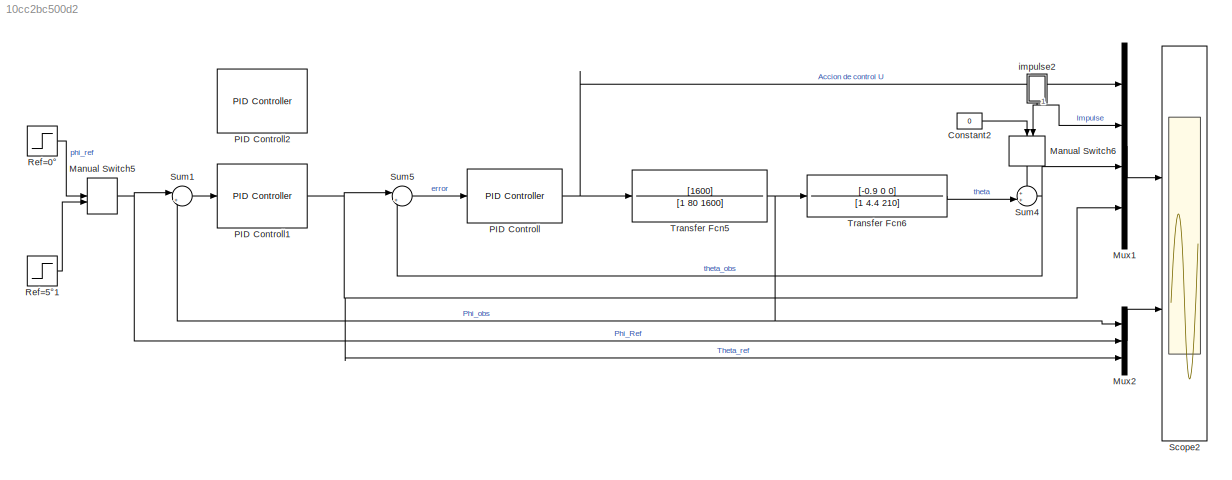
MODEL slx_10cc2bc500d2
KIND model
CONFIG AbsTol = auto
CONFIG EnableMultiTasking = off
CONFIG FixedStep = 0.01
CONFIG MaxStep = auto
CONFIG MinStep = auto
CONFIG RelTol = 1e-3
CONFIG SampleTimeConstraint = Unconstrained
CONFIG Solver = FixedStepAuto
CONFIG SolverName = FixedStepAuto
CONFIG StartTime = 0.0
CONFIG StopTime = 10
BLOCK [Constant] Constant2
  Value = 0
BLOCK [ManualSwitch] Manual Switch5
  CurrentSetting = 0
BLOCK [ManualSwitch] Manual Switch6
BLOCK [Mux] Mux1
  DisplayOption = bar
  Ports = [4, 1]
BLOCK [Mux] Mux2
  DisplayOption = bar
  Inputs = 3
  Ports = [3, 1]
BLOCK [Reference] PID Controll  REF=simulink/Continuous/PID Controller
  Ports = [1, 1]
  SourceBlock = simulink/Continuous/PID Controller
  SourceProductBaseCode = SL
  SourceProductName = Simulink
  SourceType = PID 1dof
BLOCK [Reference] PID Controll1  REF=simulink/Continuous/PID Controller
  Ports = [1, 1]
  SourceBlock = simulink/Continuous/PID Controller
  SourceProductBaseCode = SL
  SourceProductName = Simulink
  SourceType = PID 1dof
BLOCK [Reference] PID Controll2  REF=simulink/Continuous/PID Controller
  Ports = [1, 1]
  SourceBlock = simulink/Continuous/PID Controller
  SourceProductBaseCode = SL
  SourceProductName = Simulink
  SourceType = PID 1dof
BLOCK [Step] Ref=0°
  After = 0
  SampleTime = 0
BLOCK [Step] Ref=5°1
  After = 5
  SampleTime = 0
BLOCK [Scope] Scope2
  NumInputPorts = 2
  Ports = [2]
  ScopeSpecificationString = Simulink.scopes.TimeScopeBlockCfg('CurrentConfiguration', extmgr.ConfigurationSet(extmgr.Configuration('Core','General UI',true),extmgr.Configuration('Core','Source UI',true),extmgr.Configuration('Sources','WiredSimulink',true,'DataLoggingVariableName','ScopeData2'),extmgr.Configuration('Visuals','Time Domain',true,'SerializedDisplays',{struct('MinYLimReal','-6.58818','MaxYLimReal','34.07397','YLa...<+1918ch>
BLOCK [Sum] Sum1
  IconShape = round
  InputSameDT = off
  Inputs = |+-
  OutDataTypeStr = Inherit: Inherit via internal rule
  Ports = [2, 1]
  SaturateOnIntegerOverflow = off
BLOCK [Sum] Sum4
  IconShape = round
  InputSameDT = off
  Inputs = ++|
  OutDataTypeStr = Inherit: Inherit via internal rule
  Ports = [2, 1]
  SaturateOnIntegerOverflow = off
BLOCK [Sum] Sum5
  IconShape = round
  InputSameDT = off
  Inputs = |+-
  OutDataTypeStr = Inherit: Inherit via internal rule
  Ports = [2, 1]
  SaturateOnIntegerOverflow = off
BLOCK [TransferFcn] Transfer Fcn5
  Denominator = [1 80 1600]
  Numerator = [1600]
BLOCK [TransferFcn] Transfer Fcn6
  Denominator = [1 4.4 210]
  Numerator = [-0.9 0 0]
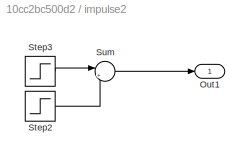
BLOCK [SubSystem] impulse2
  Ports = [0, 1]
  RequestExecContextInheritance = off
  Variant = off
BLOCK [Outport] impulse2/Out1
  IconDisplay = Port number
BLOCK [Step] impulse2/Step2
  After = 30
  SampleTime = 0
  Time = 2.01
BLOCK [Step] impulse2/Step3
  After = 30
  SampleTime = 0
  Time = 2
BLOCK [Sum] impulse2/Sum
  IconShape = round
  InputSameDT = off
  Inputs = |+-
  OutDataTypeStr = Inherit: Inherit via internal rule
  Ports = [2, 1]
  SaturateOnIntegerOverflow = off
LINE Constant2:1 -> Manual Switch6:1
NET Manual Switch5:1 -> Mux2:2, Sum1:1
LINE Manual Switch6:1 -> Sum4:1
LINE Mux1:1 -> Scope2:1
LINE Mux2:1 -> Scope2:2
NET PID Controll1:1 -> Mux1:4, Mux2:3, Sum5:1
NET PID Controll:1 -> Mux1:1, Transfer Fcn5:1
LINE Ref=0°:1 -> Manual Switch5:1
LINE Ref=5°1:1 -> Manual Switch5:2
LINE Sum1:1 -> PID Controll1:1
NET Sum4:1 -> Mux1:3, Sum5:2
LINE Sum5:1 -> PID Controll:1
NET Transfer Fcn5:1 -> Mux2:1, Sum1:2, Transfer Fcn6:1
LINE Transfer Fcn6:1 -> Sum4:2
LINE impulse2/Step2:1 -> impulse2/Sum:2
LINE impulse2/Step3:1 -> impulse2/Sum:1
LINE impulse2/Sum:1 -> impulse2/Out1:1
NET impulse2:1 -> Manual Switch6:2, Mux1:2
note: NET lines group one-source signal fan-out (src -> all destinations, sorted); 1:1 wires keep LINE
